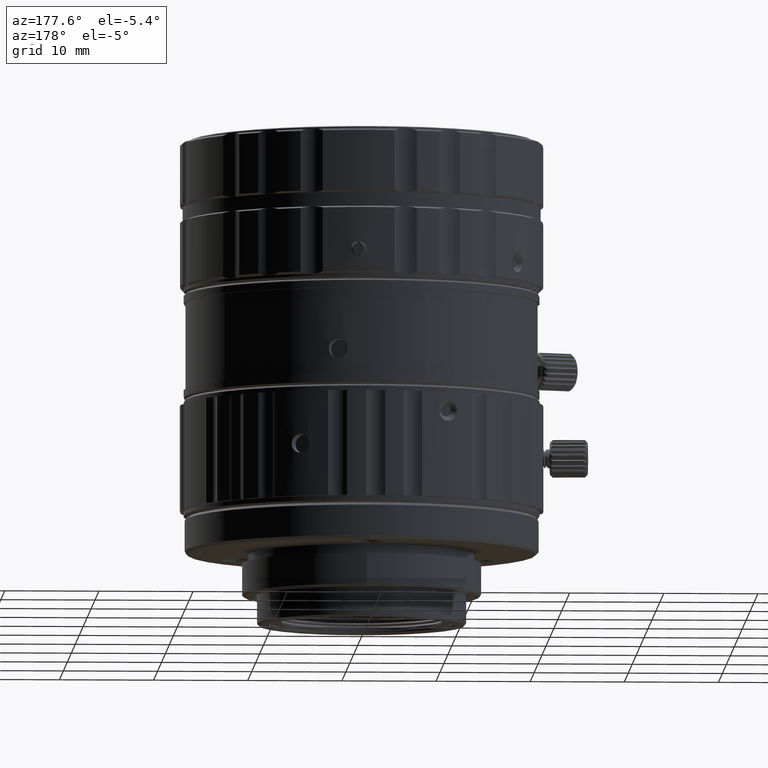
[diagram: clean part render]
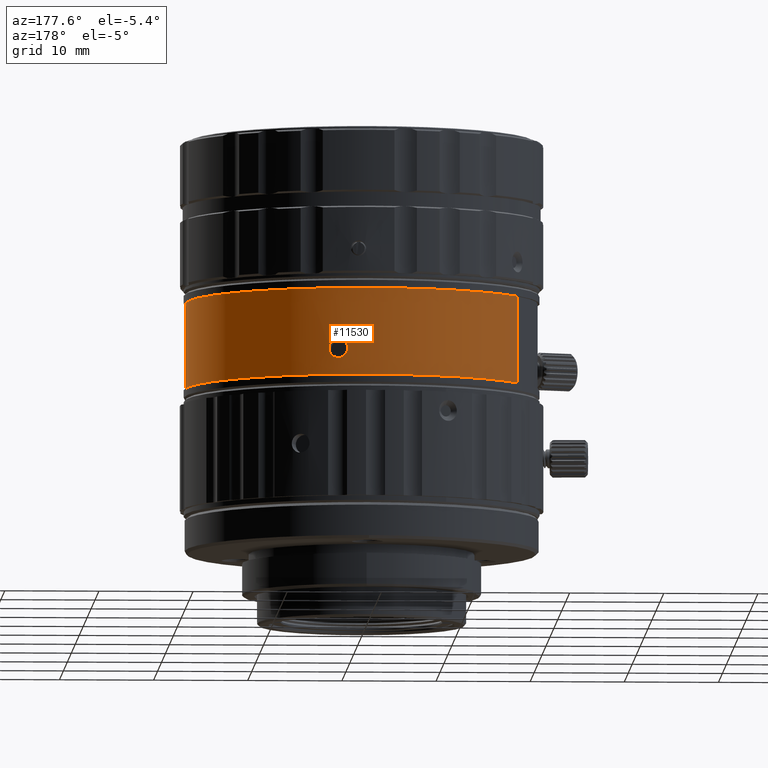
[diagram: same view with one face highlighted and labeled with its STEP entity id]
A machine part, auxiliary view. The second image highlights one B-rep face of the part: STEP entity #11530.
In plain terms, the highlighted cylindrical surface (partial cylindrical patch) has radius 18.7 mm, axis along (0, 0, 1).
Its self-contained STEP definition (entity closure, byte-faithful):
#165 = CARTESIAN_POINT ( 'NONE',  ( 3.191312002028240169, 18.42568002239463709, 19.49847691041871300 ) ) ;
#421 = CARTESIAN_POINT ( 'NONE',  ( 3.474992345894810875, 18.37439119511244101, 19.48243087068590640 ) ) ;
#1330 = CARTESIAN_POINT ( 'NONE',  ( 2.765974425866346564, 18.49429698294306945, 17.62376447165648230 ) ) ;
#1500 = EDGE_CURVE ( 'NONE', #13816, #2455, #22707, .T. ) ;
#1585 = CARTESIAN_POINT ( 'NONE',  ( 4.035007495628914143, 18.25949622079448176, 17.90346402171337559 ) ) ;
#1828 = CARTESIAN_POINT ( 'NONE',  ( 3.776405817066478932, 18.31465436257505530, 17.65673029726411158 ) ) ;
#2073 = ORIENTED_EDGE ( 'NONE', *, *, #30947, .F. ) ;
#2074 = CARTESIAN_POINT ( 'NONE',  ( 3.283310093286406328, 18.40948921092548929, 17.50026597978170528 ) ) ;
#2329 = CARTESIAN_POINT ( 'NONE',  ( 4.208073589324399677, 18.22080689153694877, 18.25878037756571004 ) ) ;
#2455 = VERTEX_POINT ( 'NONE', #26097 ) ;
#3324 = CARTESIAN_POINT ( 'NONE',  ( 2.375374670849386138, 18.54852257333990906, 18.02805302852172886 ) ) ;
#3341 = EDGE_CURVE ( 'NONE', #2455, #13816, #40043, .T. ) ;
#3710 = CARTESIAN_POINT ( 'NONE',  ( 3.044480158400337810, 18.45038313179343348, 19.48003590970196797 ) ) ;
#3919 = VECTOR ( 'NONE', #15087, 1000.000000000000000 ) ;
#3957 = CARTESIAN_POINT ( 'NONE',  ( 4.202133048622815004, 18.22176743072487426, 18.73449792053854424 ) ) ;
#4209 = CARTESIAN_POINT ( 'NONE',  ( 3.352679641516622677, 18.39720954294338995, 19.50031026379634014 ) ) ;
#4461 = CARTESIAN_POINT ( 'NONE',  ( 3.726619156034052249, 18.32486813055396979, 19.37612547164696153 ) ) ;
#4712 = CARTESIAN_POINT ( 'NONE',  ( 3.940667091863351068, 18.28011222017283899, 19.20842279276060438 ) ) ;
#5112 = CARTESIAN_POINT ( 'NONE',  ( 3.952442305349750384, 18.27753730395762233, 17.80248012060769369 ) ) ;
#5874 = CARTESIAN_POINT ( 'NONE',  ( 4.050991783369670252, 18.25597166776566738, 17.92637942756660507 ) ) ;
#6093 = EDGE_CURVE ( 'NONE', #42483, #24529, #46681, .T. ) ;
#6260 = LINE ( 'NONE', #18677, #29800 ) ;
#6383 = CARTESIAN_POINT ( 'NONE',  ( 2.392363185807295789, 18.54636579235111427, 17.99732123874441569 ) ) ;
#6626 = CARTESIAN_POINT ( 'NONE',  ( 2.619304342991723544, 18.51564991333982491, 17.72802965929306751 ) ) ;
#7273 = EDGE_LOOP ( 'NONE', ( #22457, #25138 ) ) ;
#7769 = CARTESIAN_POINT ( 'NONE',  ( 3.886114963323718197, 18.29175073941358320, 19.25935830794545467 ) ) ;
#8017 = CARTESIAN_POINT ( 'NONE',  ( 2.272183830747251942, 18.56182154749626534, 18.71530879100208011 ) ) ;
#8264 = CARTESIAN_POINT ( 'NONE',  ( 2.257772136072366820, 18.56320654926845748, 18.50000001219106238 ) ) ;
#9175 = CARTESIAN_POINT ( 'NONE',  ( 4.133902101932867446, 18.23757035265720106, 18.06736347654998553 ) ) ;
#9681 = CARTESIAN_POINT ( 'NONE',  ( 3.717971543769519993, 18.32666023338501660, 17.62223671257274660 ) ) ;
#10183 = CARTESIAN_POINT ( 'NONE',  ( 2.377471117968841252, 18.54825361863942135, 18.02412999924521841 ) ) ;
#10429 = CARTESIAN_POINT ( 'NONE',  ( 2.448970473783778079, 18.53918186983298000, 17.90396858866181518 ) ) ;
#10674 = CARTESIAN_POINT ( 'NONE',  ( 2.567308689598865268, 18.52299604039479064, 17.77238519839394115 ) ) ;
#10742 = VERTEX_POINT ( 'NONE', #22948 ) ;
#10930 = CARTESIAN_POINT ( 'NONE',  ( 2.383746104495572116, 18.54745261469991036, 18.01262679792895582 ) ) ;
#11188 = CARTESIAN_POINT ( 'NONE',  ( 2.357690050311137764, 18.55079019656125894, 18.06141237301121194 ) ) ;
#11530 = ADVANCED_FACE ( 'NONE', ( #28075, #16165 ), #35444, .T. ) ;
#11576 = CARTESIAN_POINT ( 'NONE',  ( 4.185454708188964368, 18.22562692655534633, 18.79799630651796605 ) ) ;
#11833 = CARTESIAN_POINT ( 'NONE',  ( 4.221611797989071491, 18.21723868084856690, 18.61202879815881062 ) ) ;
#12290 = CARTESIAN_POINT ( 'NONE',  ( 0.000000000000000000, 0.000000000000000000, 15.69999999999999929 ) ) ;
#12335 = CARTESIAN_POINT ( 'NONE',  ( 3.818959968556018492, 18.30587957679156474, 19.31394562079084665 ) ) ;
#12359 = CARTESIAN_POINT ( 'NONE',  ( 0.000000000000000000, 0.000000000000000000, -11.15900000000000070 ) ) ;
#12579 = CARTESIAN_POINT ( 'NONE',  ( 4.067584030071337509, 18.25234913498033862, 19.05015761194877655 ) ) ;
#12993 = CARTESIAN_POINT ( 'NONE',  ( 3.310642228094103690, 18.40461429340471256, 17.50171011802850884 ) ) ;
#13238 = CARTESIAN_POINT ( 'NONE',  ( 3.637023383386671860, 18.34291129557684741, 17.58137214482508526 ) ) ;
#13766 = CARTESIAN_POINT ( 'NONE',  ( 3.721038596590693359, 18.32603730681969978, 17.62394919403439530 ) ) ;
#13816 = VERTEX_POINT ( 'NONE', #24854 ) ;
#13999 = CARTESIAN_POINT ( 'NONE',  ( 2.633047204041218503, 18.51369947427885165, 17.71682917963137172 ) ) ;
#14422 = AXIS2_PLACEMENT_3D ( 'NONE', #12359, #27819, #43034 ) ;
#15087 = DIRECTION ( 'NONE',  ( 0.000000000000000000, 0.000000000000000000, 1.000000000000000000 ) ) ;
#15345 = CARTESIAN_POINT ( 'NONE',  ( -16.19467505066617008, 9.349999999938111372, -11.15900000000000070 ) ) ;
#15812 = CIRCLE ( 'NONE', #43361, 18.69999999987999928 ) ;
#16141 = CARTESIAN_POINT ( 'NONE',  ( 2.362146632270324176, 18.55060387271933209, 18.96543865444775179 ) ) ;
#16165 = FACE_BOUND ( 'NONE', #7273, .T. ) ;
#16384 = CARTESIAN_POINT ( 'NONE',  ( 3.217537189437577716, 18.42111129491799204, 19.49963456511352433 ) ) ;
#16803 = CARTESIAN_POINT ( 'NONE',  ( 2.689373383750952140, 18.50557547181773899, 17.67466258608776997 ) ) ;
#17053 = CARTESIAN_POINT ( 'NONE',  ( 3.995176688937663645, 18.26823738271115261, 17.85266342014814356 ) ) ;
#17299 = CARTESIAN_POINT ( 'NONE',  ( 2.829265409595296710, 18.48462840620150871, 17.59154390680517110 ) ) ;
#17519 = AXIS2_PLACEMENT_3D ( 'NONE', #36517, #20568, #40583 ) ;
#18050 = CARTESIAN_POINT ( 'NONE',  ( 2.265684139331563873, 18.56224458642198627, 18.36988507529186165 ) ) ;
#18217 = EDGE_LOOP ( 'NONE', ( #2073, #39004, #20028, #45090 ) ) ;
#18302 = CARTESIAN_POINT ( 'NONE',  ( 2.388447073964097278, 18.54685879215985622, 18.00421129460647762 ) ) ;
#18677 = CARTESIAN_POINT ( 'NONE',  ( 16.19467505066616653, -9.349999999938113149, -11.15900000000000070 ) ) ;
#18801 = CARTESIAN_POINT ( 'NONE',  ( 2.286884682388311330, 18.55966404084641042, 18.25199447880321912 ) ) ;
#19198 = CARTESIAN_POINT ( 'NONE',  ( 4.135189175161143815, 18.23707114397116769, 18.92578314845193432 ) ) ;
#19452 = CARTESIAN_POINT ( 'NONE',  ( 2.811111606371623051, 18.48742958136078229, 19.40593488379081677 ) ) ;
#19707 = CARTESIAN_POINT ( 'NONE',  ( 2.257767358535075264, 18.56320545259864119, 18.59853615245591385 ) ) ;
#20028 = ORIENTED_EDGE ( 'NONE', *, *, #34198, .T. ) ;
#20210 = CARTESIAN_POINT ( 'NONE',  ( 4.032704212932513244, 18.26018497806232332, 19.10518573567782141 ) ) ;
#20568 = DIRECTION ( 'NONE',  ( 0.000000000000000000, 0.000000000000000000, -1.000000000000000000 ) ) ;
#20615 = CARTESIAN_POINT ( 'NONE',  ( 3.737898585206581359, 18.32258709889687864, 17.63359639230016995 ) ) ;
#20694 = CARTESIAN_POINT ( 'NONE',  ( 4.226157184922273657, 18.21620494195976292, 18.55720286904651317 ) ) ;
#20842 = VERTEX_POINT ( 'NONE', #37471 ) ;
#21108 = CARTESIAN_POINT ( 'NONE',  ( 3.918931489928048073, 18.28469716677184920, 17.76960861816629844 ) ) ;
#21351 = CARTESIAN_POINT ( 'NONE',  ( 3.671660505203828695, 18.33602153464568119, 17.59727960611459707 ) ) ;
#21604 = CARTESIAN_POINT ( 'NONE',  ( 3.990894858862267025, 18.26917108723328198, 17.84754421881862640 ) ) ;
#22356 = CARTESIAN_POINT ( 'NONE',  ( 2.416305894511655783, 18.54333559312648205, 17.95675041121508997 ) ) ;
#22457 = ORIENTED_EDGE ( 'NONE', *, *, #1500, .F. ) ;
#22707 = B_SPLINE_CURVE_WITH_KNOTS ( 'NONE', 3,
 ( #8264, #19707, #8017, #16141, #27310, #27046, #19452, #43512, #3710, #46558, #38983, #34915, #165, #16384, #39231, #4209, #421, #34665, #4461, #12335, #27796, #7769, #31859, #43251, #4712, #47311, #20210, #12579, #38735, #28051, #30862, #24253, #19198, #46306, #11576, #3957, #31110, #11833, #20694, #24736, #40211 ),
 .UNSPECIFIED., .F., .F.,
 ( 4, 2, 2, 2, 2, 2, 2, 2, 2, 2, 2, 2, 1, 2, 2, 2, 2, 2, 2, 2, 4 ),
 ( 0.5171051040094727380, 0.5799637378891517869, 0.6428223717688309469, 0.7056810056485101068, 0.7371103225883497423, 0.7528249810582696711, 0.7606823102932298575, 0.7685396395281900439, 0.8313982734078724235, 0.8628275903477133912, 0.8785422488176335420, 0.8824709134351136353, 0.8863995780525938395, 0.8942569072875546921, 0.9256862242273983243, 0.9335435534623603981, 0.9414008826973223609, 0.9571155411672462865, 0.9885448581070925833, 1.004259516577016509, 1.019974175046940434 ),
 .UNSPECIFIED. ) ;
#22948 = CARTESIAN_POINT ( 'NONE',  ( -16.19467505066617008, 9.349999999938111372, 15.69999999999999929 ) ) ;
#23958 = DIRECTION ( 'NONE',  ( 0.8660254037844969943, -0.4999999999998990252, 0.000000000000000000 ) ) ;
#24253 = CARTESIAN_POINT ( 'NONE',  ( 4.111209411569610062, 18.24248424003477709, 18.97349752929828171 ) ) ;
#24414 = CARTESIAN_POINT ( 'NONE',  ( 4.017841772858685268, 18.26327000327759720, 17.88096070458409415 ) ) ;
#24529 = VERTEX_POINT ( 'NONE', #37404 ) ;
#24736 = CARTESIAN_POINT ( 'NONE',  ( 4.227389359717350636, 18.21594596261836330, 18.52896650879743490 ) ) ;
#24854 = CARTESIAN_POINT ( 'NONE',  ( 2.257772136072366820, 18.56320654926845748, 18.50000001219106238 ) ) ;
#25138 = ORIENTED_EDGE ( 'NONE', *, *, #3341, .F. ) ;
#25665 = CARTESIAN_POINT ( 'NONE',  ( 2.260931297135235329, 18.56282731947228370, 18.41863911905561935 ) ) ;
#25702 = EDGE_CURVE ( 'NONE', #20842, #10742, #15812, .T. ) ;
#25917 = CARTESIAN_POINT ( 'NONE',  ( 2.380055852129118854, 18.54792176121780400, 18.01935402787795582 ) ) ;
#26097 = CARTESIAN_POINT ( 'NONE',  ( 4.227452908548801958, 18.21592702523266993, 18.50000026218433291 ) ) ;
#26164 = CARTESIAN_POINT ( 'NONE',  ( 2.258262085992333468, 18.56315297310857204, 18.46746322729410039 ) ) ;
#27046 = CARTESIAN_POINT ( 'NONE',  ( 2.678507173399879093, 18.50746473971051032, 19.33480458591664686 ) ) ;
#27310 = CARTESIAN_POINT ( 'NONE',  ( 2.438029162823110330, 18.54087172665481376, 19.09878197985710457 ) ) ;
#27753 = DIRECTION ( 'NONE',  ( 0.000000000000000000, 0.000000000000000000, 1.000000000000000000 ) ) ;
#27796 = CARTESIAN_POINT ( 'NONE',  ( 3.849273844904175235, 18.29955863477761113, 19.29097589396221579 ) ) ;
#27819 = DIRECTION ( 'NONE',  ( 0.000000000000000000, 0.000000000000000000, 1.000000000000000000 ) ) ;
#28051 = CARTESIAN_POINT ( 'NONE',  ( 4.100889868893333734, 18.24482033189821450, 18.99241142929396631 ) ) ;
#28075 = FACE_OUTER_BOUND ( 'NONE', #18217, .T. ) ;
#28144 = CARTESIAN_POINT ( 'NONE',  ( -16.19467505066617008, 9.349999999938111372, 24.94999999999999929 ) ) ;
#28223 = CARTESIAN_POINT ( 'NONE',  ( 4.009061199597231173, 18.26519857488780474, 17.86978589741917389 ) ) ;
#28464 = CARTESIAN_POINT ( 'NONE',  ( 4.003748983125493766, 18.26636348967225842, 17.86313105558214076 ) ) ;
#28707 = CARTESIAN_POINT ( 'NONE',  ( 4.227452908548801958, 18.21592702523266993, 18.50000026218433291 ) ) ;
#29228 = CARTESIAN_POINT ( 'NONE',  ( 3.713637436929715818, 18.32753918726356446, 17.61982790200818272 ) ) ;
#29478 = CARTESIAN_POINT ( 'NONE',  ( 2.304510460000781080, 18.55750349718664793, 18.18944443730683957 ) ) ;
#29800 = VECTOR ( 'NONE', #37453, 1000.000000000000000 ) ;
#30219 = CARTESIAN_POINT ( 'NONE',  ( 2.259150904876515487, 18.56304511030563376, 18.44304879983561207 ) ) ;
#30862 = CARTESIAN_POINT ( 'NONE',  ( 4.109337648268574839, 18.24290666948001416, 18.97679457346396603 ) ) ;
#30947 = EDGE_CURVE ( 'NONE', #20842, #24529, #6260, .T. ) ;
#31110 = CARTESIAN_POINT ( 'NONE',  ( 4.217930586694758510, 18.21809974284371947, 18.64232825766789148 ) ) ;
#31859 = CARTESIAN_POINT ( 'NONE',  ( 3.896629355495609293, 18.28951519634672707, 19.25005739521100168 ) ) ;
#32025 = CARTESIAN_POINT ( 'NONE',  ( 3.544739847239345654, 18.36103277110602150, 17.54448368501163458 ) ) ;
#32273 = CARTESIAN_POINT ( 'NONE',  ( 3.723391935133126385, 18.32555767831023275, 17.62527277430742956 ) ) ;
#33266 = CARTESIAN_POINT ( 'NONE',  ( 2.342299907334843834, 18.55274409193717844, 18.09497382177951508 ) ) ;
#34010 = CARTESIAN_POINT ( 'NONE',  ( 2.533237827638456174, 18.52771117621905006, 17.80735322028983703 ) ) ;
#34198 = EDGE_CURVE ( 'NONE', #10742, #42483, #42729, .T. ) ;
#34266 = CARTESIAN_POINT ( 'NONE',  ( 2.257772136072366820, 18.56320654926845748, 18.50000001219106238 ) ) ;
#34665 = CARTESIAN_POINT ( 'NONE',  ( 3.663241045660065698, 18.33755300469204741, 19.40857327775773555 ) ) ;
#34915 = CARTESIAN_POINT ( 'NONE',  ( 3.180553961686738429, 18.42753727865841640, 19.49777726983030135 ) ) ;
#35444 = CYLINDRICAL_SURFACE ( 'NONE', #14422, 18.69999999987999928 ) ;
#36079 = CARTESIAN_POINT ( 'NONE',  ( 3.143012479836867712, 18.43414091163087676, 17.49910277629534150 ) ) ;
#36326 = CARTESIAN_POINT ( 'NONE',  ( 4.101682391514749781, 18.24477081884474572, 18.00347170792289120 ) ) ;
#36517 = CARTESIAN_POINT ( 'NONE',  ( 0.000000000000000000, 0.000000000000000000, 24.94999999999999929 ) ) ;
#36820 = CARTESIAN_POINT ( 'NONE',  ( 3.483363225934449137, 18.37277240430448799, 17.52728123732789456 ) ) ;
#37080 = CARTESIAN_POINT ( 'NONE',  ( 3.731364793757762754, 18.32392806444649125, 17.62981272414941714 ) ) ;
#37404 = CARTESIAN_POINT ( 'NONE',  ( 16.19467505066616653, -9.349999999938113149, 24.94999999999999929 ) ) ;
#37453 = DIRECTION ( 'NONE',  ( 0.000000000000000000, 0.000000000000000000, 1.000000000000000000 ) ) ;
#37471 = CARTESIAN_POINT ( 'NONE',  ( 16.19467505066616653, -9.349999999938113149, 15.69999999999999929 ) ) ;
#37573 = CARTESIAN_POINT ( 'NONE',  ( 2.257768516526919456, 18.56321202406306270, 18.49391177137932374 ) ) ;
#38336 = CARTESIAN_POINT ( 'NONE',  ( 2.257867171124009698, 18.56320054071468917, 18.48373569609337252 ) ) ;
#38735 = CARTESIAN_POINT ( 'NONE',  ( 4.095984629524655141, 18.24593219545037570, 19.00123762008794515 ) ) ;
#38983 = CARTESIAN_POINT ( 'NONE',  ( 3.145769467437346645, 18.43349510535280444, 19.49496498148264223 ) ) ;
#39004 = ORIENTED_EDGE ( 'NONE', *, *, #25702, .T. ) ;
#39231 = CARTESIAN_POINT ( 'NONE',  ( 3.230866102901345904, 18.41877037266321793, 19.49995662014037023 ) ) ;
#40043 = B_SPLINE_CURVE_WITH_KNOTS ( 'NONE', 3,
 ( #28707, #44425, #2329, #9175, #36326, #5874, #1585, #24414, #28223, #28464, #17053, #21604, #5112, #21108, #48485, #1828, #20615, #37080, #32273, #13766, #9681, #29228, #47978, #21351, #13238, #32025, #36820, #47485, #44676, #12993, #2074, #36079, #44169, #17299, #1330, #16803, #47735, #48726, #13999, #45166, #6626, #41379, #10674, #34010, #10429, #22356, #6383, #18302, #10930, #45918, #25917, #42124, #10183, #3324, #11188, #33266, #29478, #18801, #44917, #18050, #25665, #30219, #26164, #38336, #37573, #34266 ),
 .UNSPECIFIED., .F., .F.,
 ( 4, 2, 2, 1, 2, 2, 2, 2, 2, 2, 2, 2, 1, 2, 2, 2, 2, 2, 2, 1, 2, 2, 2, 2, 2, 2, 1, 2, 2, 1, 2, 2, 2, 1, 2, 4 ),
 ( 0.01997417504694053159, 0.08211554116722719066, 0.1131862242273703745, 0.1209538949924058304, 0.1248377303749235445, 0.1267796480661827485, 0.1287215657574419525, 0.1442569072875131975, 0.1753275903476547160, 0.1830952611126903662, 0.1869790964952077195, 0.1889210141864672288, 0.1908629318777266826, 0.2063982734077982051, 0.2374689564679413611, 0.2530042979980132722, 0.2685396395280850723, 0.3306810056483727167, 0.3617516887085164279, 0.3695193594735525222, 0.3734031948560702641, 0.3753451125473291072, 0.3772870302385879504, 0.3928223717686609717, 0.4238930548288070699, 0.4316607255938423315, 0.4355445609763619608, 0.4374864786676219142, 0.4384574375132543333, 0.4394283963588867525, 0.4549637378890045714, 0.4860344209492387102, 0.5015697624793564735, 0.5093374332444146058, 0.5132212686269437274, 0.5171051040094727380 ),
 .UNSPECIFIED. ) ;
#40211 = CARTESIAN_POINT ( 'NONE',  ( 4.227452908548801958, 18.21592702523266993, 18.50000026218433291 ) ) ;
#40583 = DIRECTION ( 'NONE',  ( 0.8660254037844969943, -0.4999999999998990252, 0.000000000000000000 ) ) ;
#41379 = CARTESIAN_POINT ( 'NONE',  ( 2.614000474589776246, 18.51640062288918998, 17.73247128391540173 ) ) ;
#42124 = CARTESIAN_POINT ( 'NONE',  ( 2.379308217899810174, 18.54801776400356417, 18.02073115956796201 ) ) ;
#42483 = VERTEX_POINT ( 'NONE', #28144 ) ;
#42729 = LINE ( 'NONE', #15345, #3919 ) ;
#43034 = DIRECTION ( 'NONE',  ( -0.8660254037844969943, 0.4999999999998990252, 0.000000000000000000 ) ) ;
#43251 = CARTESIAN_POINT ( 'NONE',  ( 3.914695895120427593, 18.28566393632636533, 19.23336347624850973 ) ) ;
#43361 = AXIS2_PLACEMENT_3D ( 'NONE', #12290, #27753, #23958 ) ;
#43512 = CARTESIAN_POINT ( 'NONE',  ( 2.988550339205030326, 18.45943525723311751, 19.46705642072437925 ) ) ;
#44169 = CARTESIAN_POINT ( 'NONE',  ( 3.018429023526040922, 18.45487372540815585, 17.51773203764473763 ) ) ;
#44425 = CARTESIAN_POINT ( 'NONE',  ( 4.227417090438056135, 18.21610310472240357, 18.38545684892561738 ) ) ;
#44676 = CARTESIAN_POINT ( 'NONE',  ( 3.363679535710394575, 18.39500566468263898, 17.50665556948187884 ) ) ;
#44917 = CARTESIAN_POINT ( 'NONE',  ( 2.269677451224414000, 18.56175996439763765, 18.34263739503215973 ) ) ;
#45090 = ORIENTED_EDGE ( 'NONE', *, *, #6093, .T. ) ;
#45166 = CARTESIAN_POINT ( 'NONE',  ( 2.630148950548573783, 18.51411182664813992, 17.71914389369733200 ) ) ;
#45918 = CARTESIAN_POINT ( 'NONE',  ( 2.381689665417975998, 18.54771297512220229, 18.01635524007743783 ) ) ;
#46306 = CARTESIAN_POINT ( 'NONE',  ( 4.149162204118711728, 18.23390008178570909, 18.89377746232669253 ) ) ;
#46558 = CARTESIAN_POINT ( 'NONE',  ( 3.121317123299929719, 18.43761767795093576, 19.49215289520480709 ) ) ;
#46681 = CIRCLE ( 'NONE', #17519, 18.69999999987999928 ) ;
#47311 = CARTESIAN_POINT ( 'NONE',  ( 3.963402676417584480, 18.27520953677199955, 19.18406114571003229 ) ) ;
#47485 = CARTESIAN_POINT ( 'NONE',  ( 3.393894957371639709, 18.38945051237119799, 17.51068809955079786 ) ) ;
#47735 = CARTESIAN_POINT ( 'NONE',  ( 2.666585849663059005, 18.50889771311275211, 17.69072463506798698 ) ) ;
#47978 = CARTESIAN_POINT ( 'NONE',  ( 3.706012054023834157, 18.32908225326937668, 17.61567766490339793 ) ) ;
#48485 = CARTESIAN_POINT ( 'NONE',  ( 3.826567161419496710, 18.30426018390073395, 17.68828762424452705 ) ) ;
#48726 = CARTESIAN_POINT ( 'NONE',  ( 2.644179108450140703, 18.51211184038742275, 17.70799300197964854 ) ) ;